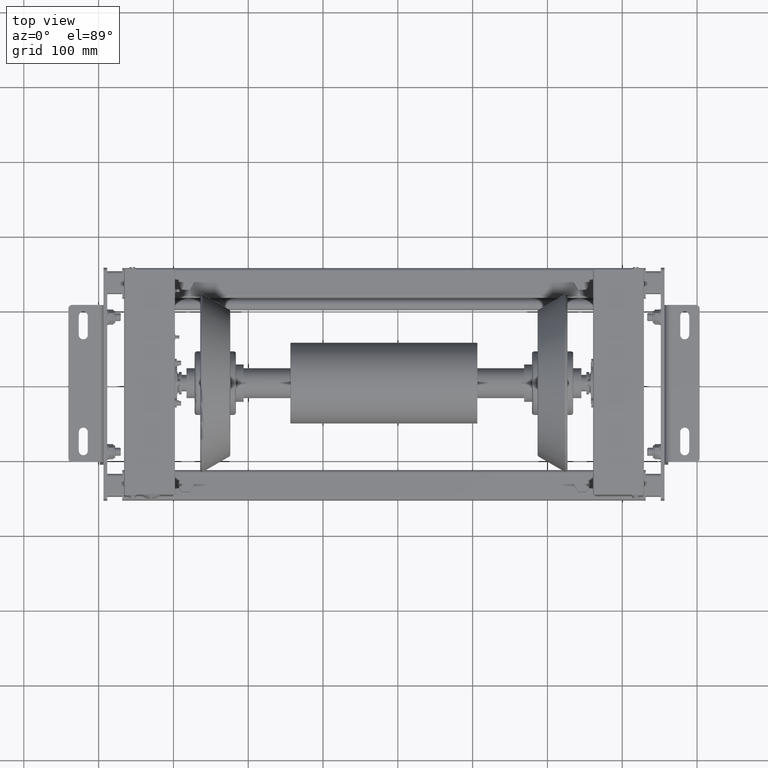
[diagram: clean part render]
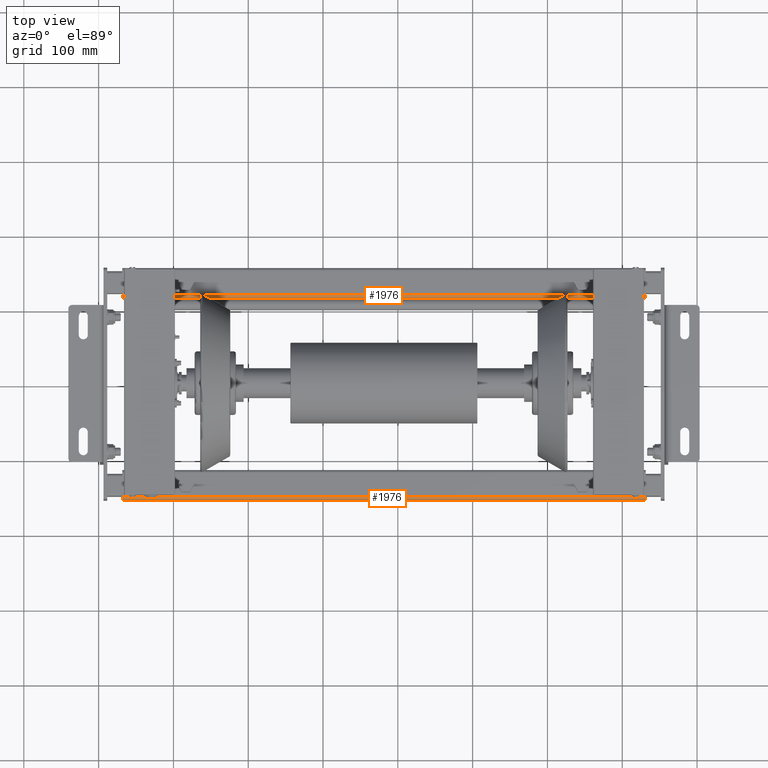
[diagram: same view with one multi-face feature highlighted, each face labeled with its STEP entity id]
A machine part, top view. The highlighted faces form ONE feature: a constant-radius fillet chain: 2 tangent blend faces with common blend radius 4 mm. The faces share edges in the B-rep.
Their STEP definitions:
[1] entity #1976 (Cylinder):
#1935=CARTESIAN_POINT('',(-16.0,26.0,-405.0));
#1936=DIRECTION('',(0.0,0.0,1.0));
#1937=DIRECTION('',(1.0,0.0,0.0));
#1938=AXIS2_PLACEMENT_3D('',#1935,#1936,#1937);
#1939=CYLINDRICAL_SURFACE('',#1938,4.0);
#1940=CARTESIAN_POINT('',(-20.0,26.0,295.0));
#1941=VERTEX_POINT('',#1940);
#1942=CARTESIAN_POINT('',(-16.0,30.0,295.0));
#1943=VERTEX_POINT('',#1942);
#1944=CARTESIAN_POINT('',(-16.0,26.0,295.0));
#1945=DIRECTION('',(0.0,0.0,-1.0));
#1946=DIRECTION('',(1.0,0.0,0.0));
#1947=AXIS2_PLACEMENT_3D('',#1944,#1945,#1946);
#1948=CIRCLE('',#1947,4.0);
#1949=EDGE_CURVE('',#1941,#1943,#1948,.T.);
#1950=ORIENTED_EDGE('',*,*,#1949,.T.);
#1951=CARTESIAN_POINT('',(-16.0,30.0,-405.0));
#1952=VERTEX_POINT('',#1951);
#1953=CARTESIAN_POINT('',(-16.0,30.0,-405.0));
#1954=DIRECTION('',(0.0,0.0,1.0));
#1955=VECTOR('',#1954,700.0);
#1956=LINE('',#1953,#1955);
#1957=EDGE_CURVE('',#1952,#1943,#1956,.T.);
#1958=ORIENTED_EDGE('',*,*,#1957,.F.);
#1959=CARTESIAN_POINT('',(-20.0,26.0,-405.0));
#1960=VERTEX_POINT('',#1959);
#1961=CARTESIAN_POINT('',(-16.0,26.0,-405.0));
#1962=DIRECTION('',(0.0,0.0,-1.0));
#1963=DIRECTION('',(1.0,0.0,0.0));
#1964=AXIS2_PLACEMENT_3D('',#1961,#1962,#1963);
#1965=CIRCLE('',#1964,4.0);
#1966=EDGE_CURVE('',#1960,#1952,#1965,.T.);
#1967=ORIENTED_EDGE('',*,*,#1966,.F.);
#1968=CARTESIAN_POINT('',(-20.0,26.0,-405.0));
#1969=DIRECTION('',(0.0,0.0,1.0));
#1970=VECTOR('',#1969,700.0);
#1971=LINE('',#1968,#1970);
#1972=EDGE_CURVE('',#1960,#1941,#1971,.T.);
#1973=ORIENTED_EDGE('',*,*,#1972,.T.);
#1974=EDGE_LOOP('',(#1950,#1958,#1967,#1973));
#1975=FACE_OUTER_BOUND('',#1974,.T.);
#1976=ADVANCED_FACE('',(#1975),#1939,.T.);
[2] entity #1976 (Cylinder):
#1935=CARTESIAN_POINT('',(-16.0,26.0,-405.0));
#1936=DIRECTION('',(0.0,0.0,1.0));
#1937=DIRECTION('',(1.0,0.0,0.0));
#1938=AXIS2_PLACEMENT_3D('',#1935,#1936,#1937);
#1939=CYLINDRICAL_SURFACE('',#1938,4.0);
#1940=CARTESIAN_POINT('',(-20.0,26.0,295.0));
#1941=VERTEX_POINT('',#1940);
#1942=CARTESIAN_POINT('',(-16.0,30.0,295.0));
#1943=VERTEX_POINT('',#1942);
#1944=CARTESIAN_POINT('',(-16.0,26.0,295.0));
#1945=DIRECTION('',(0.0,0.0,-1.0));
#1946=DIRECTION('',(1.0,0.0,0.0));
#1947=AXIS2_PLACEMENT_3D('',#1944,#1945,#1946);
#1948=CIRCLE('',#1947,4.0);
#1949=EDGE_CURVE('',#1941,#1943,#1948,.T.);
#1950=ORIENTED_EDGE('',*,*,#1949,.T.);
#1951=CARTESIAN_POINT('',(-16.0,30.0,-405.0));
#1952=VERTEX_POINT('',#1951);
#1953=CARTESIAN_POINT('',(-16.0,30.0,-405.0));
#1954=DIRECTION('',(0.0,0.0,1.0));
#1955=VECTOR('',#1954,700.0);
#1956=LINE('',#1953,#1955);
#1957=EDGE_CURVE('',#1952,#1943,#1956,.T.);
#1958=ORIENTED_EDGE('',*,*,#1957,.F.);
#1959=CARTESIAN_POINT('',(-20.0,26.0,-405.0));
#1960=VERTEX_POINT('',#1959);
#1961=CARTESIAN_POINT('',(-16.0,26.0,-405.0));
#1962=DIRECTION('',(0.0,0.0,-1.0));
#1963=DIRECTION('',(1.0,0.0,0.0));
#1964=AXIS2_PLACEMENT_3D('',#1961,#1962,#1963);
#1965=CIRCLE('',#1964,4.0);
#1966=EDGE_CURVE('',#1960,#1952,#1965,.T.);
#1967=ORIENTED_EDGE('',*,*,#1966,.F.);
#1968=CARTESIAN_POINT('',(-20.0,26.0,-405.0));
#1969=DIRECTION('',(0.0,0.0,1.0));
#1970=VECTOR('',#1969,700.0);
#1971=LINE('',#1968,#1970);
#1972=EDGE_CURVE('',#1960,#1941,#1971,.T.);
#1973=ORIENTED_EDGE('',*,*,#1972,.T.);
#1974=EDGE_LOOP('',(#1950,#1958,#1967,#1973));
#1975=FACE_OUTER_BOUND('',#1974,.T.);
#1976=ADVANCED_FACE('',(#1975),#1939,.T.);